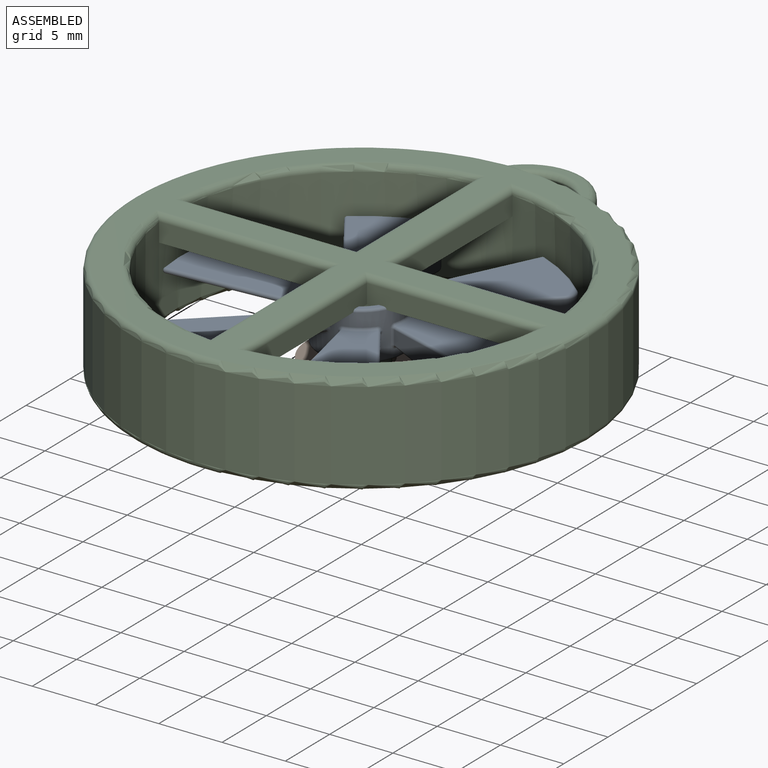
[diagram: assembled view]
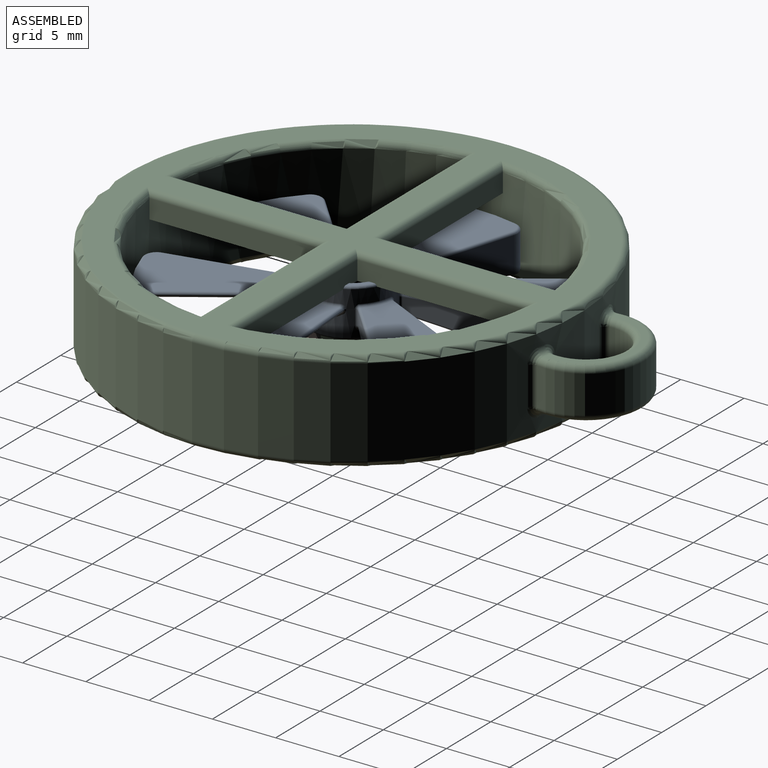
[diagram: assembled view, second angle]
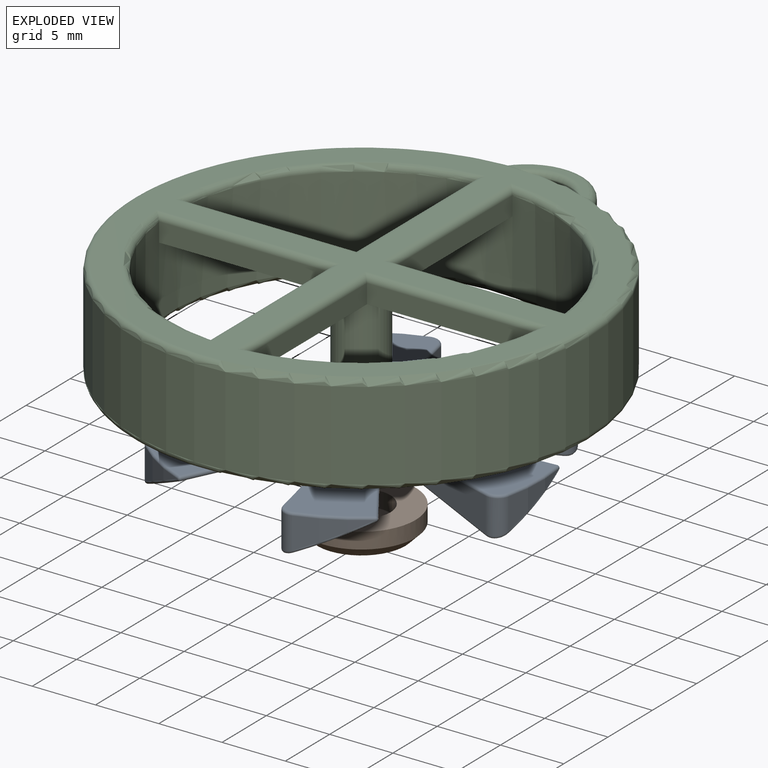
[diagram: exploded view]
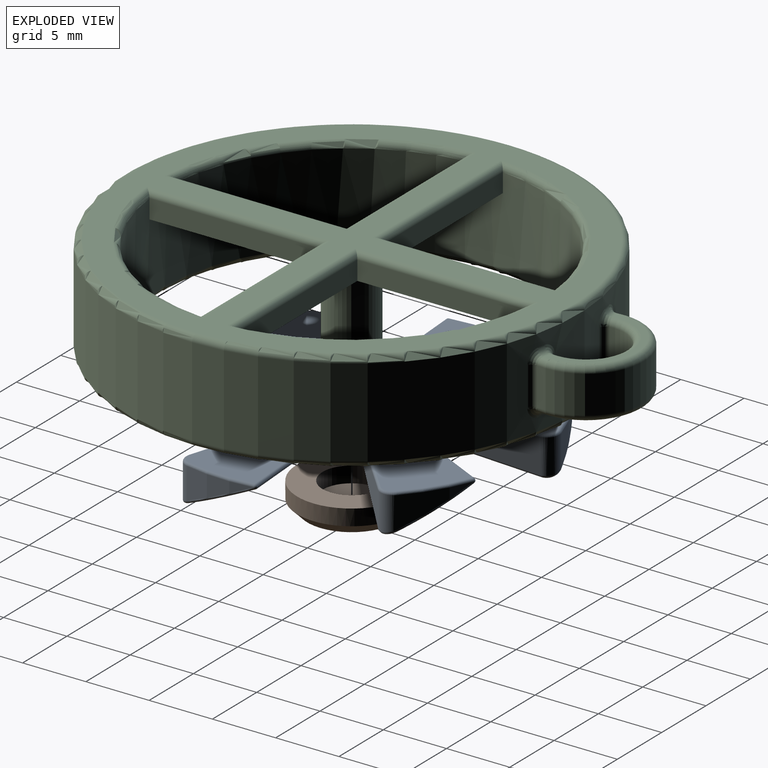
[diagram: exploded view, second angle]
ASSEMBLY  parts=3 mates=2
PART A: 122 faces, bbox 28.5x29.1x5.2 mm
  f0: cylinder r=3.4mm len=6.8mm, axis (0,0,1), area 50.1mm2, adj f5,f7,f44,f45,f48,f49,f50,f51
  f1: cylinder r=2.7mm len=5.4mm, axis (0,0,1), area 58.7mm2, adj f4,f6
  f2: plane 6.4x6.4mm, normal (0,0,-1), area 5.7mm2, adj f6,f7
  f3: plane 6.4x6.4mm, normal (0,0,1), area 5.7mm2, adj f4,f5
  f4: torus R=2.9mm, axis (0,0,1), area 5.5mm2, adj f1,f3
  f5: torus R=3.2mm, axis (0,0,1), area 6.6mm2, adj f0,f3
  f6: torus R=2.9mm, axis (0,0,1), area 5.5mm2, adj f1,f2
  f7: torus R=3.2mm, axis (0,0,1), area 6.6mm2, adj f0,f2
  f8: plane 9.01x3.53mm, normal (0.93,-0.37,0), area 18.4mm2, adj f9,f116,f117,f121
  f9: cylinder r=1mm len=2.75mm, axis (0,0,-1), area 4.4mm2, adj f8,f10,f112,f113
  f10: cylinder r=14.38mm len=5.41mm, axis (0,0,-1), area 6.8mm2, adj f9,f109,f110
  f11: plane 10.7x5.89mm, normal (0,0,1), area 44.9mm2, adj f109,f111,f112,f115,f116
  f12: plane 10.73x5.89mm, normal (-0.42,0,-0.91), area 49.6mm2, adj f110,f111,f113,f117,f118
  f13: cylinder r=1mm len=2.75mm, axis (0,0,-1), area 4.4mm2, adj f14,f17,f84,f85
  f14: cylinder r=14.38mm len=4.98mm, axis (0,0,-1), area 6.8mm2, adj f13,f81,f82
  f15: plane 11.42x7.32mm, normal (0.21,-0.37,-0.91), area 49.6mm2, adj f82,f83,f85,f89,f90
  f16: plane 11.37x7.33mm, normal (0,0,1), area 44.9mm2, adj f81,f83,f84,f87,f88
  f17: plane 9.57x2.72mm, normal (-0.15,0.99,0), area 18.4mm2, adj f13,f88,f89,f93
  f18: cylinder r=1mm len=2.75mm, axis (0,0,-1), area 4.4mm2, adj f19,f22,f56,f57
  f19: cylinder r=14.38mm len=4.38mm, axis (0,0,-1), area 6.8mm2, adj f18,f53,f54
  f20: plane 10.35x9.87mm, normal (0.21,0.37,-0.91), area 49.6mm2, adj f54,f55,f57,f61,f62
  f21: plane 10.38x9.84mm, normal (0,0,1), area 44.9mm2, adj f53,f55,f56,f59,f60
  f22: plane 7.56x6.03mm, normal (-0.78,-0.62,0), area 18.4mm2, adj f18,f60,f61,f65
  f23: cylinder r=14.38mm len=4.98mm, axis (0,0,-1), area 6.8mm2, adj f24,f39,f40
  f24: cylinder r=1mm len=2.75mm, axis (0,0,-1), area 4.4mm2, adj f23,f25,f42,f43
  f25: plane 9.57x2.72mm, normal (0.15,-0.99,0), area 18.4mm2, adj f24,f46,f47,f51
  f26: plane 11.37x7.33mm, normal (0,0,1), area 44.9mm2, adj f39,f41,f42,f45,f46
  f27: plane 11.42x7.32mm, normal (-0.21,0.37,-0.91), area 49.6mm2, adj f40,f41,f43,f47,f48
  f28: cylinder r=14.38mm len=5.41mm, axis (0,0,-1), area 6.8mm2, adj f29,f67,f68
  f29: cylinder r=1mm len=2.75mm, axis (0,0,-1), area 4.4mm2, adj f28,f30,f70,f71
  f30: plane 9.01x3.53mm, normal (-0.93,0.37,0), area 18.4mm2, adj f29,f74,f75,f79
  f31: plane 10.7x5.89mm, normal (0,0,1), area 44.9mm2, adj f67,f69,f70,f73,f74
  f32: plane 10.73x5.89mm, normal (0.42,0,-0.91), area 49.6mm2, adj f68,f69,f71,f75,f76
  f33: plane 7.56x6.03mm, normal (0.78,0.62,0), area 18.4mm2, adj f34,f102,f103,f107
  f34: cylinder r=1mm len=2.75mm, axis (0,0,-1), area 4.4mm2, adj f33,f35,f98,f99
  f35: cylinder r=14.38mm len=4.38mm, axis (0,0,-1), area 6.8mm2, adj f34,f95,f96
  f36: plane 10.38x9.84mm, normal (0,0,1), area 44.9mm2, adj f95,f97,f98,f101,f102
  f37: plane 10.35x9.87mm, normal (-0.21,-0.37,-0.91), area 49.6mm2, adj f96,f97,f99,f103,f104
  f38: sphere r=0.2mm, area 0.1mm2, adj f39,f40,f41
  f39: torus R=14.18mm, axis (0,0,1), area 1.7mm2, adj f23,f26,f38,f42
  f40: bspline ~8.06x4.17mm, area 1.9mm2, adj f23,f27,f38,f43
  f41: cylinder r=0.2mm len=9.44mm, axis (-0.87,-0.5,0), area 5.8mm2, adj f26,f27,f38,f44
  f42: torus R=0.8mm, axis (0,0,1), area 0.5mm2, adj f24,f26,f39,f46
  f43: bspline ~1.26x0.93mm, area 0.6mm2, adj f24,f27,f40,f47
  f44: bspline ~0.79x0.5mm, area 0.2mm2, adj f0,f41,f45,f48
  f45: torus R=3.6mm, axis (0,0,1), area 0.7mm2, adj f0,f26,f44,f49
  f46: cylinder r=0.2mm len=9.6mm, axis (-0.99,-0.15,0), area 3mm2, adj f25,f26,f42,f49
  f47: cylinder r=0.2mm len=9.64mm, axis (-0.97,-0.15,0.17), area 3.9mm2, adj f25,f27,f43,f50
  f48: bspline ~1.99x1.4mm, area 0.8mm2, adj f0,f27,f44,f50
  f49: bspline ~0.49x0.44mm, area 0.1mm2, adj f0,f45,f46,f51
  f50: bspline ~0.59x0.43mm, area 0.2mm2, adj f0,f47,f48,f51
  f51: cylinder r=0.2mm len=1.07mm, axis (0,0,1), area 0.3mm2, adj f0,f25,f49,f50
  f52: sphere r=0.2mm, area 0.1mm2, adj f53,f54,f55
  f53: torus R=14.18mm, axis (0,0,1), area 1.7mm2, adj f19,f21,f52,f56
  f54: bspline ~7.01x5.37mm, area 1.9mm2, adj f19,f20,f52,f57
  f55: cylinder r=0.2mm len=9.44mm, axis (-0.87,0.5,0), area 5.8mm2, adj f20,f21,f52,f58
  f56: torus R=0.8mm, axis (0,0,1), area 0.5mm2, adj f18,f21,f53,f60
  f57: bspline ~1.48x0.58mm, area 0.6mm2, adj f18,f20,f54,f61
  f58: bspline ~0.79x0.5mm, area 0.2mm2, adj f0,f55,f59,f62
  f59: torus R=3.6mm, axis (0,0,1), area 0.7mm2, adj f0,f21,f58,f63
  f60: cylinder r=0.2mm len=7.69mm, axis (-0.62,0.78,0), area 3mm2, adj f21,f22,f56,f63
  f61: cylinder r=0.2mm len=7.76mm, axis (-0.61,0.77,0.17), area 3.9mm2, adj f20,f22,f57,f64
  f62: bspline ~2.16x1.27mm, area 0.8mm2, adj f0,f20,f58,f64
  f63: bspline ~0.49x0.45mm, area 0.1mm2, adj f0,f59,f60,f65
  f64: bspline ~0.53x0.43mm, area 0.2mm2, adj f0,f61,f62,f65
  f65: cylinder r=0.2mm len=1.07mm, axis (0,0,1), area 0.3mm2, adj f0,f22,f63,f64
  f66: sphere r=0.2mm, area 0.1mm2, adj f67,f68,f69
  f67: torus R=14.18mm, axis (0,0,1), area 1.7mm2, adj f28,f31,f66,f70
  f68: bspline ~8.66x4.17mm, area 1.9mm2, adj f28,f32,f66,f71
  f69: cylinder r=0.2mm len=10.78mm, axis (0,1,0), area 5.8mm2, adj f31,f32,f66,f72
  f70: torus R=0.8mm, axis (0,0,1), area 0.5mm2, adj f29,f31,f67,f74
  f71: bspline ~1.33x0.85mm, area 0.6mm2, adj f29,f32,f68,f75
  f72: bspline ~0.79x0.47mm, area 0.2mm2, adj f0,f69,f73,f76
  f73: torus R=3.6mm, axis (0,0,1), area 0.7mm2, adj f0,f31,f72,f77
  f74: cylinder r=0.2mm len=9.08mm, axis (0.37,0.93,0), area 3mm2, adj f30,f31,f70,f77
  f75: cylinder r=0.2mm len=9.09mm, axis (0.36,0.92,0.17), area 3.9mm2, adj f30,f32,f71,f78
  f76: bspline ~2.34x1.27mm, area 0.8mm2, adj f0,f32,f72,f78
  f77: bspline ~0.49x0.41mm, area 0.1mm2, adj f0,f73,f74,f79
  f78: bspline ~0.56x0.43mm, area 0.2mm2, adj f0,f75,f76,f79
  f79: cylinder r=0.2mm len=1.07mm, axis (0,0,1), area 0.3mm2, adj f0,f30,f77,f78
  f80: sphere r=0.2mm, area 0.1mm2, adj f81,f82,f83
  f81: torus R=14.18mm, axis (0,0,1), area 1.7mm2, adj f14,f16,f80,f84
  f82: bspline ~8.06x4.17mm, area 1.9mm2, adj f14,f15,f80,f85
  f83: cylinder r=0.2mm len=9.44mm, axis (0.87,0.5,0), area 5.8mm2, adj f15,f16,f80,f86
  f84: torus R=0.8mm, axis (0,0,1), area 0.5mm2, adj f13,f16,f81,f88
  f85: bspline ~1.26x0.93mm, area 0.6mm2, adj f13,f15,f82,f89
  f86: bspline ~0.79x0.5mm, area 0.2mm2, adj f0,f83,f87,f90
  f87: torus R=3.6mm, axis (0,0,1), area 0.7mm2, adj f0,f16,f86,f91
  f88: cylinder r=0.2mm len=9.6mm, axis (0.99,0.15,0), area 3mm2, adj f16,f17,f84,f91
  f89: cylinder r=0.2mm len=9.64mm, axis (0.97,0.15,0.17), area 3.9mm2, adj f15,f17,f85,f92
  f90: bspline ~1.99x1.4mm, area 0.8mm2, adj f0,f15,f86,f92
  f91: bspline ~0.49x0.44mm, area 0.1mm2, adj f0,f87,f88,f93
  f92: bspline ~0.59x0.43mm, area 0.2mm2, adj f0,f89,f90,f93
  f93: cylinder r=0.2mm len=1.07mm, axis (0,0,1), area 0.3mm2, adj f0,f17,f91,f92
  f94: sphere r=0.2mm, area 0.1mm2, adj f95,f96,f97
  f95: torus R=14.18mm, axis (0,0,1), area 1.7mm2, adj f35,f36,f94,f98
  f96: bspline ~7.01x5.37mm, area 1.9mm2, adj f35,f37,f94,f99
  f97: cylinder r=0.2mm len=9.44mm, axis (0.87,-0.5,0), area 5.8mm2, adj f36,f37,f94,f100
  f98: torus R=0.8mm, axis (0,0,1), area 0.5mm2, adj f34,f36,f95,f102
  f99: bspline ~1.48x0.58mm, area 0.6mm2, adj f34,f37,f96,f103
  f100: bspline ~0.79x0.5mm, area 0.2mm2, adj f0,f97,f101,f104
  f101: torus R=3.6mm, axis (0,0,1), area 0.7mm2, adj f0,f36,f100,f105
  f102: cylinder r=0.2mm len=7.69mm, axis (0.62,-0.78,0), area 3mm2, adj f33,f36,f98,f105
  f103: cylinder r=0.2mm len=7.76mm, axis (0.61,-0.77,0.17), area 3.9mm2, adj f33,f37,f99,f106
  f104: bspline ~2.16x1.27mm, area 0.8mm2, adj f0,f37,f100,f106
  f105: bspline ~0.49x0.45mm, area 0.1mm2, adj f0,f101,f102,f107
  f106: bspline ~0.53x0.43mm, area 0.2mm2, adj f0,f103,f104,f107
  f107: cylinder r=0.2mm len=1.07mm, axis (0,0,1), area 0.3mm2, adj f0,f33,f105,f106
  f108: sphere r=0.2mm, area 0.1mm2, adj f109,f110,f111
  f109: torus R=14.18mm, axis (0,0,1), area 1.7mm2, adj f10,f11,f108,f112
  f110: bspline ~8.66x4.17mm, area 1.9mm2, adj f10,f12,f108,f113
  f111: cylinder r=0.2mm len=10.78mm, axis (0,-1,0), area 5.8mm2, adj f11,f12,f108,f114
  f112: torus R=0.8mm, axis (0,0,1), area 0.5mm2, adj f9,f11,f109,f116
  f113: bspline ~1.33x0.85mm, area 0.6mm2, adj f9,f12,f110,f117
  f114: bspline ~0.79x0.46mm, area 0.2mm2, adj f0,f111,f115,f118
  f115: torus R=3.6mm, axis (0,0,1), area 0.7mm2, adj f0,f11,f114,f119
  f116: cylinder r=0.2mm len=9.08mm, axis (-0.37,-0.93,0), area 3mm2, adj f8,f11,f112,f119
  f117: cylinder r=0.2mm len=9.09mm, axis (-0.36,-0.92,0.17), area 3.9mm2, adj f8,f12,f113,f120
  f118: bspline ~2.34x1.27mm, area 0.8mm2, adj f0,f12,f114,f120
  f119: bspline ~0.49x0.41mm, area 0.1mm2, adj f0,f115,f116,f121
  f120: bspline ~0.56x0.43mm, area 0.2mm2, adj f0,f117,f118,f121
  f121: cylinder r=0.2mm len=1.07mm, axis (0,0,1), area 0.3mm2, adj f0,f8,f119,f120
PART B: 6 faces, bbox 8.6x8.6x2.1 mm
  f0: cylinder r=2.3mm len=4.6mm, axis (0,0,-1), area 18.3mm2, adj f2,f5
  f1: cylinder r=4.3mm len=8.6mm, axis (0,0,-1), area 34.2mm2, adj f2,f3
  f2: plane 8.6x8.6mm, normal (0,0,1), area 41.5mm2, adj f0,f1
  f3: cone r=3.5mm half-angle=45deg, axis (0,0,1), area 27.4mm2, adj f1,f4
  f4: plane 7x7mm, normal (0,0,-1), area 38.5mm2, adj f3
  f5: plane 4.6x4.6mm, normal (0,0,1), area 16.6mm2, adj f0
PART C: 54 faces, bbox 39x43x8 mm
  f0: cylinder r=18mm len=36mm, axis (0,0,-1), area 768.9mm2, adj f17,f18,f19,f21,f22,f23,f25,f26
  f1: cylinder r=15mm len=30mm, axis (0,0,-1), area 641.7mm2, adj f8,f9,f10,f11,f12,f13,f14,f15
  f2: plane 35x35mm, normal (0,0,1), area 327.3mm2, adj f37,f38,f39,f40,f41,f42,f43,f44
  f3: plane 35x35mm, normal (0,0,-1), area 207.3mm2, adj f49,f50
  f4: cylinder r=3.05mm len=6.1mm, axis (0,0,-1), area 30.5mm2, adj f17,f20,f24,f25
  f5: cylinder r=4.55mm len=9.1mm, axis (0,0,-1), area 47mm2, adj f22,f31,f32,f36
  f6: plane 8.1x4.57mm, normal (0,0,1), area 6.4mm2, adj f20,f21,f30,f31
  f7: plane 8.1x4.57mm, normal (0,0,-1), area 6.4mm2, adj f23,f24,f32,f33
  f8: plane 13.43x1.5mm, normal (1,0,0), area 20.1mm2, adj f1,f15,f16,f46
  f9: plane 13.43x1.5mm, normal (-1,0,0), area 20.1mm2, adj f1,f10,f16,f43
  f10: plane 13.43x1.5mm, normal (0,1,0), area 20.1mm2, adj f1,f9,f16,f44
  f11: plane 13.43x1.5mm, normal (0,-1,0), area 20.1mm2, adj f1,f12,f16,f40
  f12: plane 13.43x1.5mm, normal (-1,0,0), area 20.1mm2, adj f1,f11,f16,f41
  f13: plane 13.43x1.5mm, normal (1,0,0), area 20.1mm2, adj f1,f14,f16,f37
  f14: plane 13.43x1.5mm, normal (0,-1,0), area 20.1mm2, adj f1,f13,f16,f38
  f15: plane 13.43x1.5mm, normal (0,1,0), area 20.1mm2, adj f1,f8,f16,f48
  f16: plane 30x30mm, normal (0,0,-1), area 158.1mm2, adj f1,f8,f9,f10,f11,f12,f13,f14
  f17: cylinder r=0.5mm len=3mm, axis (0,0,-1), area 2.4mm2, adj f0,f4,f18,f19
  f18: bspline ~1.22x1.14mm, area 0.8mm2, adj f0,f17,f20,f21
  f19: bspline ~1.18x1.17mm, area 0.8mm2, adj f0,f17,f23,f24
  f20: torus R=3.55mm, axis (0,0,1), area 8.5mm2, adj f4,f6,f18,f26
  f21: torus R=18.5mm, axis (0,0,1), area 0.4mm2, adj f0,f6,f18,f27
  f22: cylinder r=0.5mm len=3mm, axis (0,0,1), area 2.2mm2, adj f0,f5,f27,f28
  f23: torus R=18.5mm, axis (0,0,1), area 0.4mm2, adj f0,f7,f19,f28
  f24: torus R=3.55mm, axis (0,0,1), area 8.5mm2, adj f4,f7,f19,f29
  f25: cylinder r=0.5mm len=3mm, axis (0,0,-1), area 2.4mm2, adj f0,f4,f26,f29
  f26: bspline ~1.18x1.17mm, area 0.8mm2, adj f0,f20,f25,f30
  f27: bspline ~1.18x1.16mm, area 0.8mm2, adj f0,f21,f22,f31
  f28: bspline ~1.22x1.11mm, area 0.8mm2, adj f0,f22,f23,f32
  f29: bspline ~1.22x1.14mm, area 0.8mm2, adj f0,f24,f25,f33
  f30: torus R=18.5mm, axis (0,0,1), area 0.4mm2, adj f0,f6,f26,f34
  f31: torus R=4.05mm, axis (0,0,1), area 11.8mm2, adj f5,f6,f27,f34
  f32: torus R=4.05mm, axis (0,0,1), area 11.8mm2, adj f5,f7,f28,f35
  f33: torus R=18.5mm, axis (0,0,1), area 0.4mm2, adj f0,f7,f29,f35
  f34: bspline ~1.22x1.11mm, area 0.8mm2, adj f0,f30,f31,f36
  f35: bspline ~1.18x1.16mm, area 0.8mm2, adj f0,f32,f33,f36
  f36: cylinder r=0.5mm len=3mm, axis (0,0,1), area 2.2mm2, adj f0,f5,f34,f35
  f37: cylinder r=0.5mm len=14.47mm, axis (0,1,0), area 10.8mm2, adj f2,f13,f38,f39
  f38: cylinder r=0.5mm len=14.47mm, axis (1,0,0), area 10.8mm2, adj f2,f14,f37,f39
  f39: torus R=15.5mm, axis (0,0,1), area 16.7mm2, adj f1,f2,f37,f38
  f40: cylinder r=0.5mm len=14.47mm, axis (1,0,0), area 10.8mm2, adj f2,f11,f41,f42
  f41: cylinder r=0.5mm len=14.47mm, axis (0,-1,0), area 10.8mm2, adj f2,f12,f40,f42
  f42: torus R=15.5mm, axis (0,0,1), area 16.7mm2, adj f1,f2,f40,f41
  f43: cylinder r=0.5mm len=14.47mm, axis (0,-1,0), area 10.8mm2, adj f2,f9,f44,f45
  f44: cylinder r=0.5mm len=14.47mm, axis (-1,0,0), area 10.8mm2, adj f2,f10,f43,f45
  f45: torus R=15.5mm, axis (0,0,1), area 16.7mm2, adj f1,f2,f43,f44
  f46: cylinder r=0.5mm len=14.47mm, axis (0,1,0), area 10.8mm2, adj f2,f8,f47,f48
  f47: torus R=15.5mm, axis (0,0,1), area 16.7mm2, adj f1,f2,f46,f48
  f48: cylinder r=0.5mm len=14.47mm, axis (-1,0,0), area 10.8mm2, adj f2,f15,f46,f47
  f49: torus R=15.5mm, axis (0,0,1), area 74.9mm2, adj f1,f3
  f50: torus R=17.5mm, axis (0,0,1), area 87.9mm2, adj f0,f3
  f51: torus R=17.5mm, axis (0,0,1), area 87.9mm2, adj f0,f2
  f52: plane 4x4mm, normal (0,0,-1), area 12.6mm2, adj f53
  f53: cylinder r=2mm len=6mm, axis (0,0,1), area 75.4mm2, adj f16,f52
PLACE A rot(axis=(0,0,-1),85.9deg) t=(0,0,0.2)mm
PLACE B at identity
PLACE C at identity fixed
MATE revolute C.f0 <-> A.f0  axis (0,0,1) through (0,0,2)mm
MATE fastened C.f0 <-> B.f0  axis (0,0,-1) through (0,0,-4)mm
